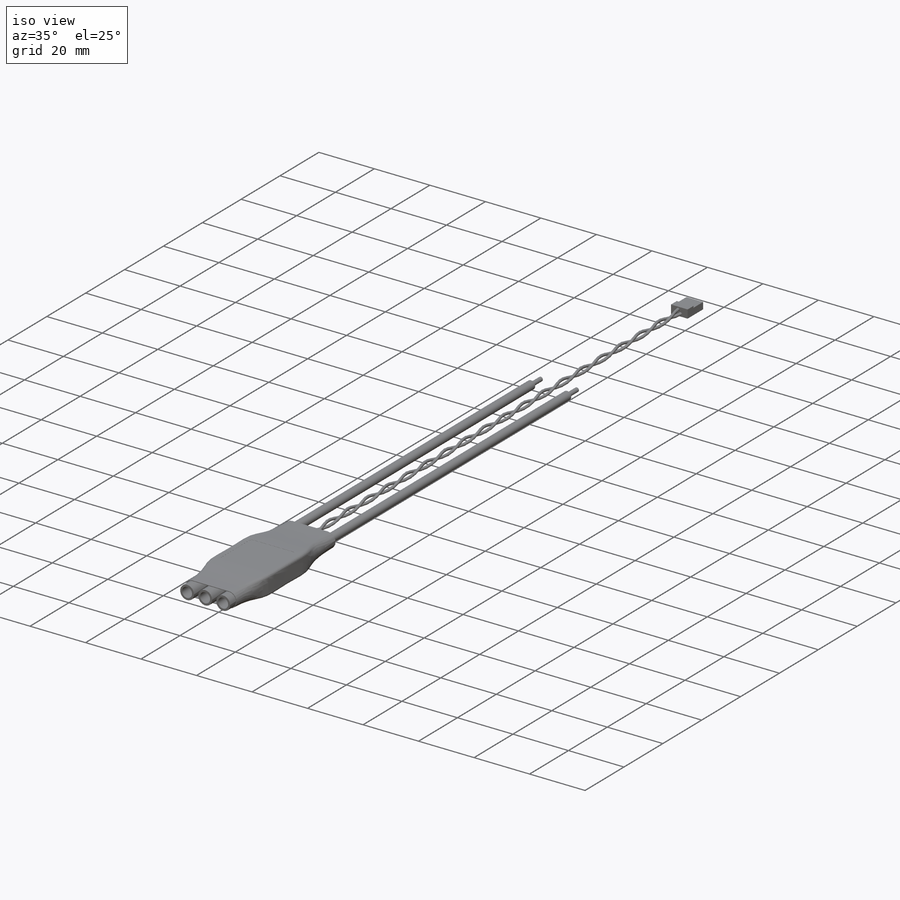
[diagram: iso view]
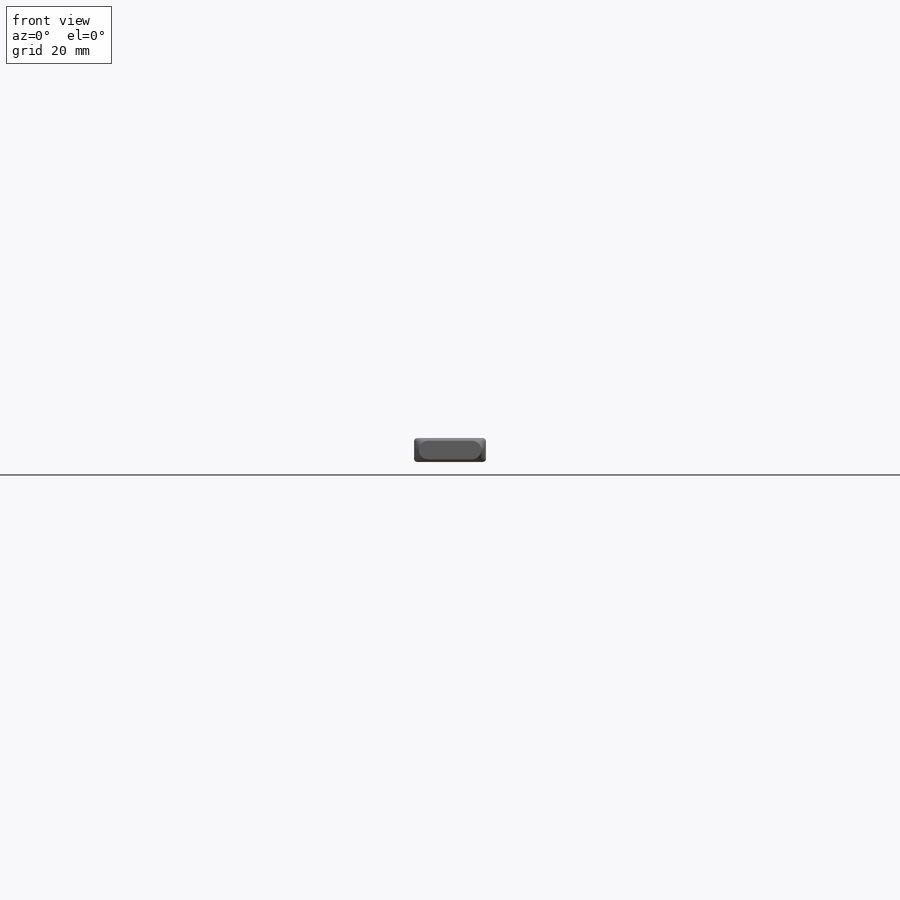
[diagram: front view]
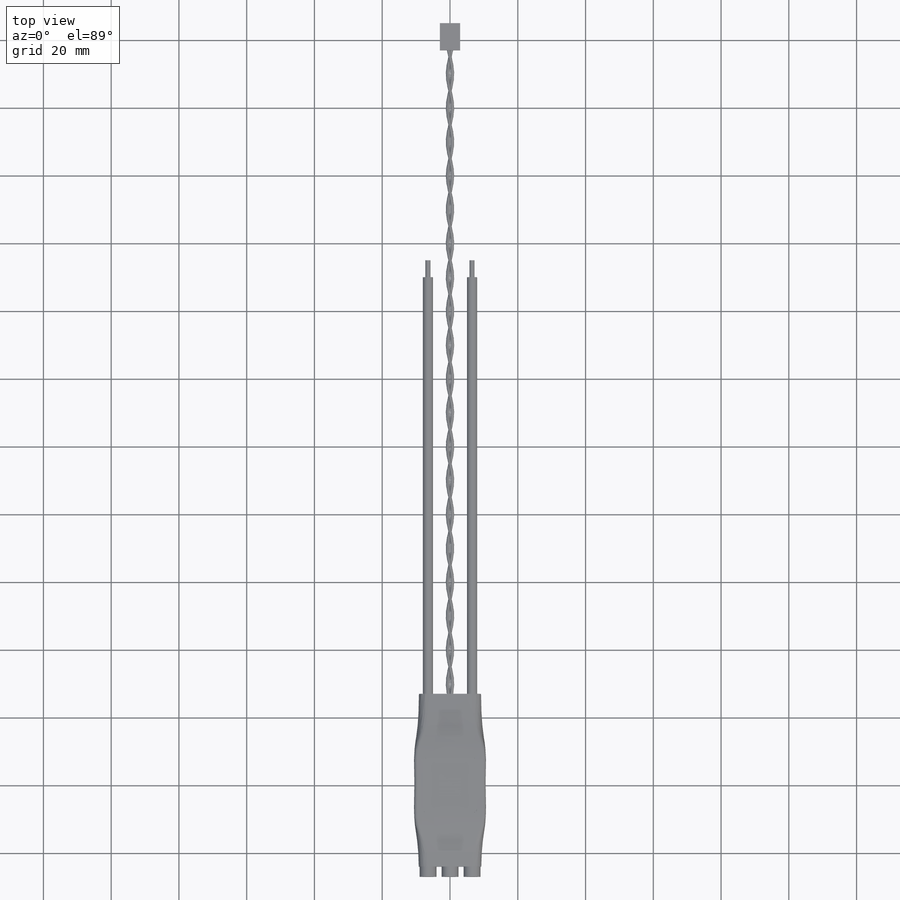
[diagram: top view]
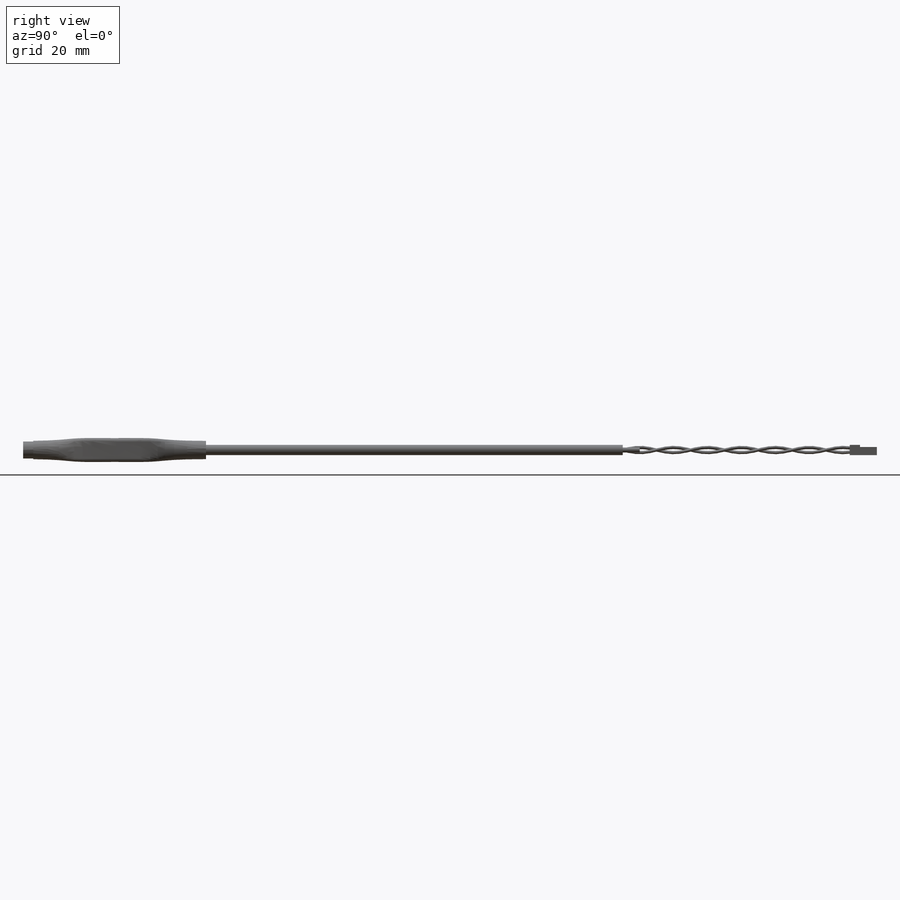
[diagram: right view]
SOLIDWORKS PART (.sldprt)
format: sldprt  version: not decoded by parser v0  size: 887,296 bytes
history: native  units: mm
features: sketch x20, extrude x7, cut_extrude x4, plane x2, material x1, fillet x1, mirror x1, helix x1, sweep x1, pattern_circular x1 (+13 scaffold rows collapsed)
feature tree (52):
  scaffold x13  (default folders/planes/origin — collapsed)
  material  "PC High Viscosity"
  sketch  "Sketch3"  dims[D1=20.0mm D2=20.0mm]
  extrude  "Boss-Extrude1"  Depth=6mm
  fillet  "Fillet1"  Radius=1mm
  plane  "Plane1"  Offset=27mm
  sketch  "Sketch4"  dims[D1=~8.594659mm D2=6.5mm D5=0.2mm D6=1.0mm D7=5.0mm]
  sketch  "Sketch12"
  extrude  "Extrude-Thin2"  Depth=0.5mm
  sketch  "Sketch13"  dims[D2=1.0mm D1=2.0mm]
  extrude  "Boss-Extrude3"  Depth=0.5mm
  mirror  "Mirror1"
  plane  "Plane2"  Offset=54mm
  sketch  "Sketch5"  dims[D1=3.0mm D2=0.75mm]
  extrude  "Boss-Extrude2"  [1 undecoded]
  sketch  "Sketch6"  dims[D3=1.0mm D1=7.0mm D2=21.0mm]
  sketch  "Sketch7"
  sketch  "Sketch8"  dims[D1=0.0mm]
  sketch  "Sketch9"  dims[D1=0.2mm]
  sketch  "Sketch10"  dims[D1=0.2mm]
  sketch  "Sketch16"  dims[D1=1.0mm D2=1.5mm]
  helix  "Helix/Spiral1"  Pitch=300mm
  sketch  "Sketch17"
  sweep  "Sweep1"
  sketch  "3DSketch1"
  pattern_circular  "CirPattern1"  Count=2  [1 undecoded]
  sketch  "Sketch14"
  extrude  "Boss-Extrude4"  Depth=128mm
  sketch  "Sketch15"
  extrude  "Boss-Extrude5"  Depth=5mm
  sketch  "Sketch18"  dims[D1=190.0mm]
  cut_extrude  "Cut-Extrude1"  [1 undecoded]
  sketch  "Sketch19"  dims[D1=3.0mm D2=6.0mm]
  extrude  "Boss-Extrude6"  Depth=8mm
  sketch  "Sketch20"  dims[D1=0.6mm D2=5.0mm]
  cut_extrude  "Cut-Extrude2"  Depth=0.2mm
  cut_extrude  "Cut-Extrude3"  [1 undecoded]
  sketch  "Sketch13<3>"  dims[D1=8.0mm]
  sketch  "Sketch21"  dims[D1=25.0mm D2=3.0mm]
  cut_extrude  "Cut-Extrude4"  [1 undecoded]
decode coverage: 24 of 36 modeling features carry decoded parameters
note: ~ marks probable driven/reference dimensions
note: 5 parameter values undecoded
summary: no parameter record found for 4 features
note: suppression state not decoded; provenance and decode notes live in map.json
